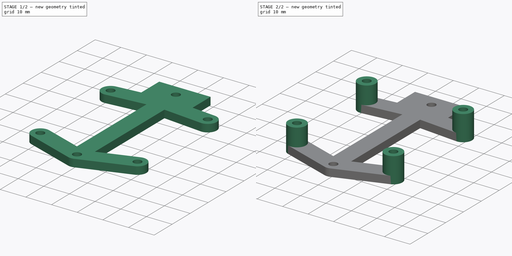
[diagram: build sequence overview — one tinted view per stage of 2, left to right]
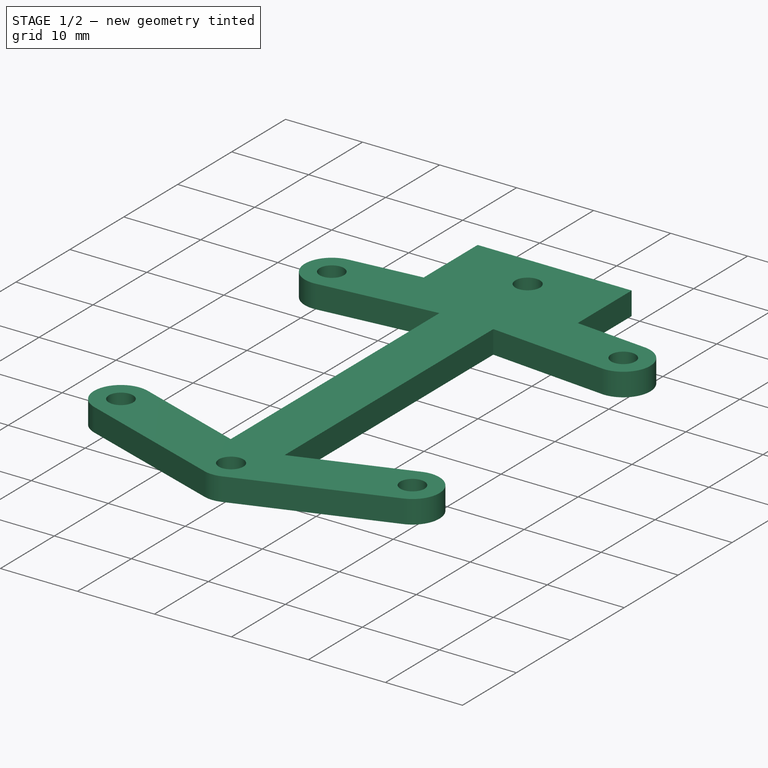
[diagram: stage 1 of 2 — iso view after this stage's code; geometry added in this stage tinted green]
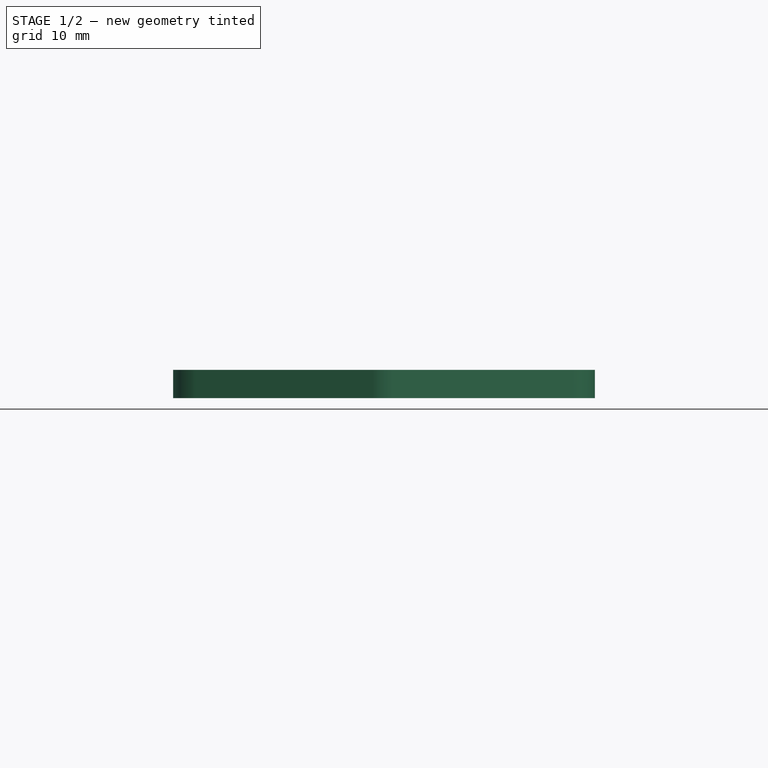
[diagram: stage 1 of 2 — front view after this stage's code; geometry added in this stage tinted green]
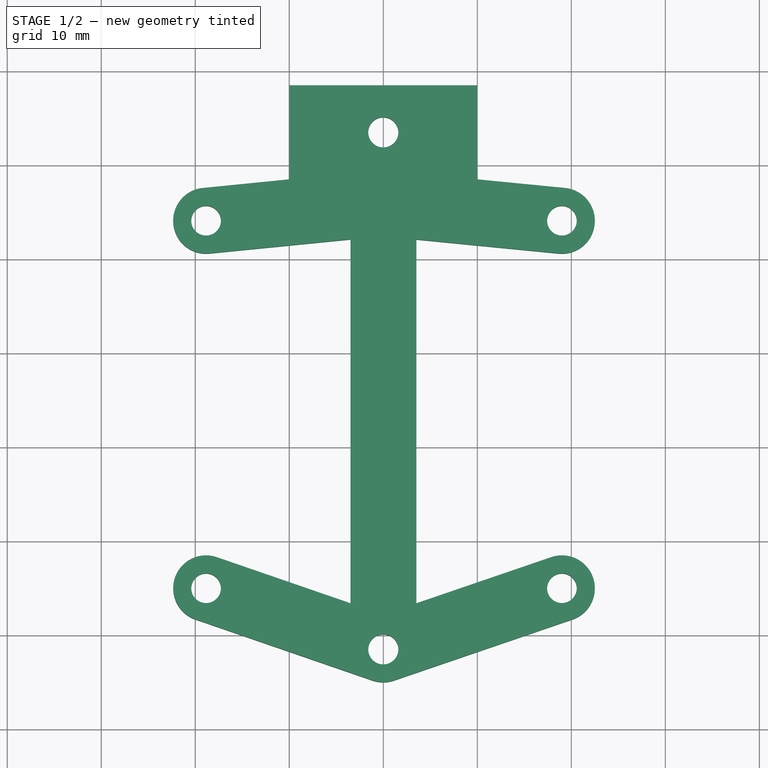
[diagram: stage 1 of 2 — top view after this stage's code; geometry added in this stage tinted green]
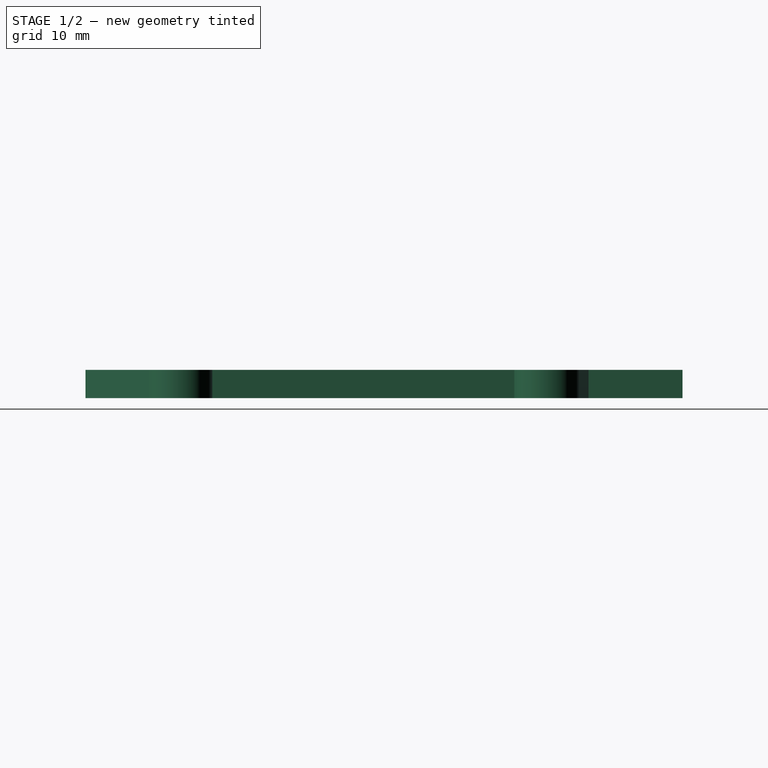
[diagram: stage 1 of 2 — right view after this stage's code; geometry added in this stage tinted green]
FCSTD DOCUMENT  (FreeCAD 0.16R)
Label: escornacpu-3_00-bracket
License: All rights reserved
LicenseURL: http://en.wikipedia.org/wiki/All_rights_reserved
objects: Sketcher::SketchObject×2, PartDesign::Pad×2
note: 6 computed .brp shape members not serialized (recipe doc carries the construction recipe); baked Part::Feature solids carry a one-line shape summary decoded from their .brp

FEATURE [Sketcher::SketchObject] Sketch
  sketch-geometry (35):
    g0: LineSegment [constr] StartX=-27.5 StartY=55 StartZ=0 EndX=27.5 EndY=55 EndZ=0
    g1: LineSegment [constr] StartX=27.5 StartY=55 StartZ=0 EndX=27.5 EndY=-55 EndZ=0
    g2: LineSegment [constr] StartX=27.5 StartY=-55 StartZ=0 EndX=-27.5 EndY=-55 EndZ=0
    g3: LineSegment [constr] StartX=-27.5 StartY=-55 StartZ=0 EndX=-27.5 EndY=55 EndZ=0
    g4: Circle CenterX=-18.85 CenterY=-45 CenterZ=0 NormalX=0 NormalY=0 NormalZ=1 Radius=1.575
    g5: Circle CenterX=19 CenterY=-45 CenterZ=0 NormalX=0 NormalY=0 NormalZ=1 Radius=1.575
    g6: LineSegment [constr] StartX=-18.85 StartY=-5.9 StartZ=0 EndX=-18.85 EndY=-45 EndZ=0
    g7: LineSegment [constr] StartX=-18.85 StartY=-45 StartZ=0 EndX=19 EndY=-45 EndZ=0
    g8: LineSegment StartX=-10 StartY=8.5 StartZ=0 EndX=10 EndY=8.5 EndZ=0
    g9: LineSegment StartX=10 StartY=8.5 StartZ=0 EndX=10 EndY=-1.5 EndZ=0
    g10: LineSegment StartX=3.51838 StartY=-7.89757 StartZ=0 EndX=3.51838 EndY=-46.5972 EndZ=0
    g11: LineSegment StartX=3.51838 StartY=-46.5972 StartZ=0 EndX=17.8671 EndY=-41.6884 EndZ=0
    g12: LineSegment StartX=-10 StartY=8.5 StartZ=0 EndX=-10 EndY=-1.5 EndZ=0
    g13: LineSegment StartX=-3.48162 StartY=-7.88463 StartZ=0 EndX=-3.48162 EndY=-46.5972 EndZ=0
    g14: LineSegment StartX=-3.48162 StartY=-46.5972 StartZ=0 EndX=-17.709 EndY=-41.6912 EndZ=0
    g15: LineSegment StartX=-19.991 StartY=-48.3088 StartZ=0 EndX=-1.14097 EndY=-54.8088 EndZ=0
    g16: LineSegment StartX=1.13291 StartY=-54.8116 StartZ=0 EndX=20.1329 EndY=-48.3116 EndZ=0
    g17: ArcOfCircle CenterX=19 CenterY=-45 CenterZ=0 NormalX=0 NormalY=0 NormalZ=1 Radius=3.5 StartAngle=5.04201 EndAngle=8.18361
    g18: ArcOfCircle CenterX=-18.85 CenterY=-45 CenterZ=0 NormalX=0 NormalY=0 NormalZ=1 Radius=3.5 StartAngle=1.23874 EndAngle=4.38033
    g19: ArcOfCircle CenterX=0 CenterY=-51.5 CenterZ=0 NormalX=0 NormalY=0 NormalZ=1 Radius=3.5 StartAngle=4.38033 EndAngle=5.04201
    g20: LineSegment [constr] StartX=-3.48162 StartY=-46.5972 StartZ=0 EndX=3.51838 EndY=-46.5972 EndZ=0
    g21: LineSegment [constr] StartX=-3.48162 StartY=-46.5972 StartZ=0 EndX=-5.76356 EndY=-53.2148 EndZ=0
    g22: LineSegment [constr] StartX=19 StartY=-45 StartZ=0 EndX=0 EndY=-51.5 EndZ=0
    g23: Circle CenterX=0 CenterY=-51.5 CenterZ=0 NormalX=0 NormalY=0 NormalZ=1 Radius=1.6
    g24: LineSegment [constr] StartX=-10 StartY=3.5 StartZ=0 EndX=10 EndY=3.5 EndZ=0
    g25: Circle CenterX=0 CenterY=3.5 CenterZ=0 NormalX=0 NormalY=0 NormalZ=1 Radius=1.6
    g26: Circle CenterX=-18.85 CenterY=-5.9 CenterZ=0 NormalX=0 NormalY=0 NormalZ=1 Radius=1.575
    g27: Circle CenterX=19 CenterY=-5.9 CenterZ=0 NormalX=0 NormalY=0 NormalZ=1 Radius=1.575
    g28: LineSegment [constr] StartX=19 StartY=-45 StartZ=0 EndX=19 EndY=-5.9 EndZ=0
    g29: LineSegment StartX=-10 StartY=-1.5 StartZ=0 EndX=-19.1973 EndY=-2.41728 EndZ=0
    g30: LineSegment StartX=10 StartY=-1.5 StartZ=0 EndX=19.3418 EndY=-2.41673 EndZ=0
    g31: LineSegment StartX=18.6582 StartY=-9.38327 StartZ=0 EndX=3.51838 EndY=-7.89757 EndZ=0
    g32: LineSegment StartX=-3.48162 StartY=-7.88463 StartZ=0 EndX=-18.5027 EndY=-9.38272 EndZ=0
    g33: ArcOfCircle CenterX=19 CenterY=-5.9 CenterZ=0 NormalX=0 NormalY=0 NormalZ=1 Radius=3.5 StartAngle=4.61457 EndAngle=7.75617
    g34: ArcOfCircle CenterX=-18.85 CenterY=-5.9 CenterZ=0 NormalX=0 NormalY=0 NormalZ=1 Radius=3.5 StartAngle=1.6702 EndAngle=4.81179
  constraints (99):
    c: Coincident(g0,g1)
    c: Coincident(g1,g2)
    c: Coincident(g2,g3)
    c: Coincident(g3,g0)
    c: Horizontal(g0)
    c: Horizontal(g2)
    c: Vertical(g1)
    c: Vertical(g3)
    c: DistanceX(g0,g0) = 55
    c: DistanceY(g3,g3) = 110
    c: Symmetric(g1,g0,g-1)
    c: Symmetric(g0,g0,g-2)
    c: Equal(g5,g4)
    c: Coincident(g4,g7)
    c: Coincident(g4,g6)
    c: Coincident(g5,g7)
    c: Vertical(g6)
    c: Horizontal(g7)
    c: DistanceY(g2,g4) = 10
    c: DistanceX(g2,g5) = 46.5
    c: Coincident(g8,g9)
    c: Coincident(g10,g11)
    c: Coincident(g13,g14)
    c: Horizontal(g8)
    c: Vertical(g13)
    c: Vertical(g10)
    c: Parallel(g16,g11)
    c: Parallel(g14,g15)
    c: Vertical(g12)
    c: Vertical(g9)
    c: Coincident(g5,g17)
    c: Coincident(g18,g4)
    c: Coincident(g14,g18)
    c: Coincident(g18,g15)
    c: Coincident(g16,g17)
    c: Coincident(g11,g17)
    c: Coincident(g19,g15)
    c: Coincident(g19,g16)
    c: Equal(g17,g18)
    c: Radius(g18) = 3.5
    c: PointOnObject(g19,g-2)
    c: Tangent(g2,g19)
    c: Tangent(g16,g19)
    c: Tangent(g15,g19)
    c: Tangent(g16,g17)
    c: Tangent(g17,g11)
    c: Tangent(g15,g18)
    c: Tangent(g14,g18)
    c: Horizontal(g20)
    c: Coincident(g13,g20)
    c: Coincident(g10,g20)
    c: Coincident(g21,g13)
    c: Perpendicular(g21,g14)
    c: PointOnObject(g21,g15)
    c: Equal(g20,g21)
    c: Coincident(g5,g22)
    c: Coincident(g23,g22)
    c: PointOnObject(g22,g-2)
    c: Parallel(g22,g16)
    c: Equal(g12,g9)
    c: DistanceY(g9,g9) = 10
    c: Symmetric(g9,g9,g24)
    c: Symmetric(g12,g12,g24)
    c: Symmetric(g24,g24,g-2)
    c: DistanceX(g24,g24) = 20
    c: Equal(g23,g25)
    c: Symmetric(g24,g24,g25)
    c: DistanceY(g22,g25) = 55
    c: Equal(g19,g17)
    c: Radius(g25) = 1.6
    c: DistanceY(g2,g6) = 49.1
    c: Coincident(g8,g12)
    c: DistanceX(g2,g4) = 8.65
    c: Equal(g26,g27)
    c: Equal(g27,g5)
    c: Radius(g27) = 1.575
    c: Coincident(g26,g6)
    c: Coincident(g27,g28)
    c: Coincident(g5,g28)
    c: Vertical(g28)
    c: Equal(g6,g28)
    c: Coincident(g13,g32)
    c: Coincident(g10,g31)
    c: Coincident(g9,g30)
    c: Coincident(g12,g29)
    c: Coincident(g34,g29)
    c: Coincident(g34,g32)
    c: Coincident(g31,g33)
    c: Coincident(g33,g30)
    c: Coincident(g34,g6)
    c: Coincident(g27,g33)
    c: Equal(g18,g34)
    c: Equal(g34,g33)
    c: Tangent(g29,g34)
    c: Tangent(g33,g30)
    c: Tangent(g33,g31)
    c: Tangent(g34,g32)
    c: Parallel(g29,g32)
    c: Parallel(g30,g31)
FEATURE [PartDesign::Pad] Pad
  Length = 3
  Length2 = 100
  Sketch = -> Sketch
  Type = 0
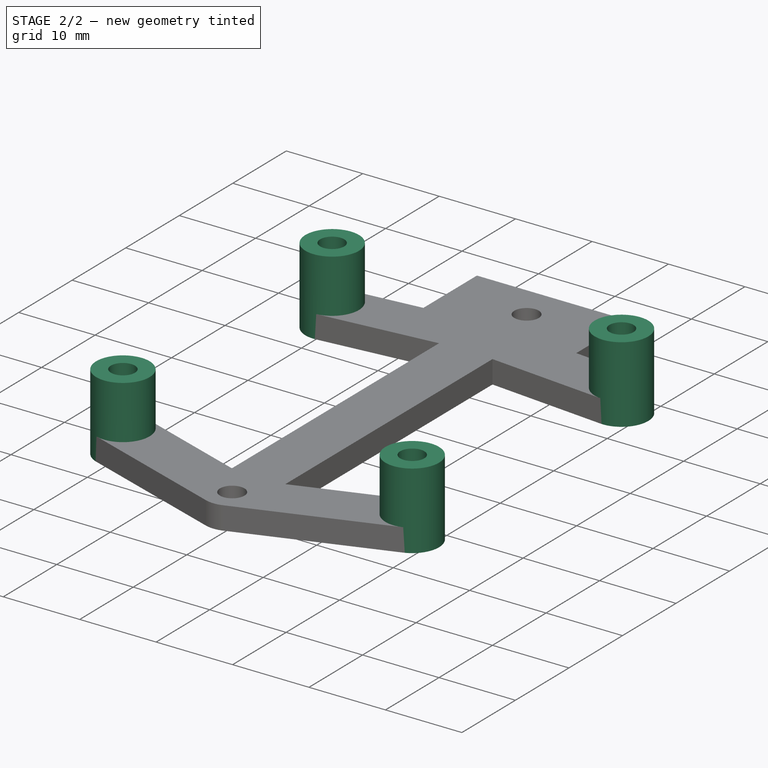
[diagram: stage 2 of 2 — iso view after this stage's code; geometry added in this stage tinted green]
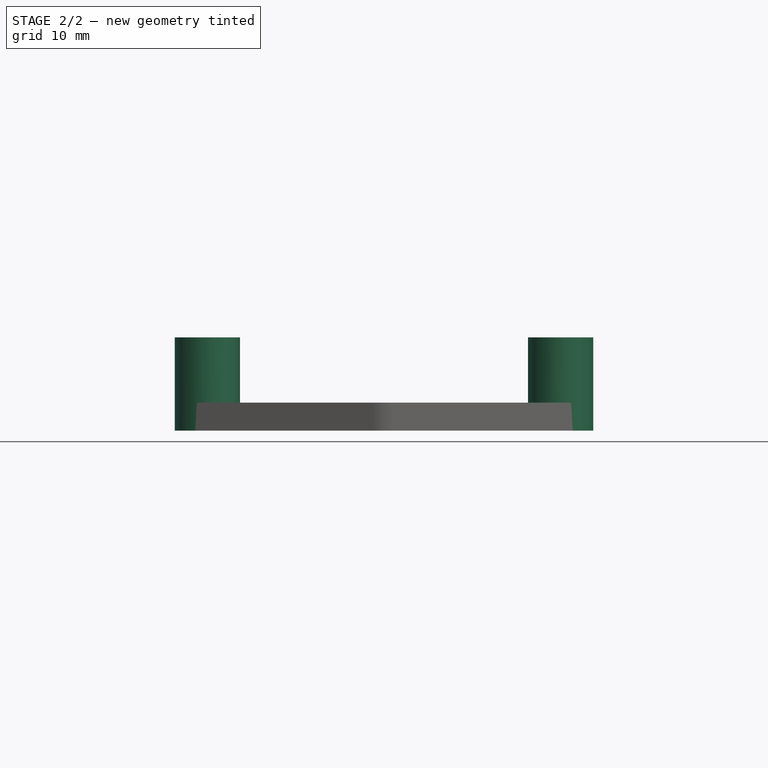
[diagram: stage 2 of 2 — front view after this stage's code; geometry added in this stage tinted green]
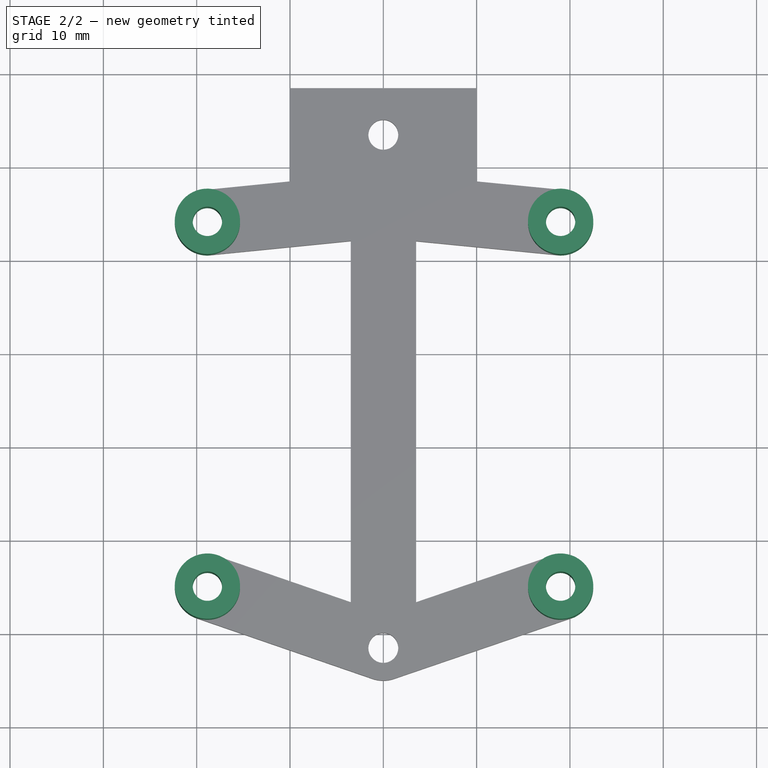
[diagram: stage 2 of 2 — top view after this stage's code; geometry added in this stage tinted green]
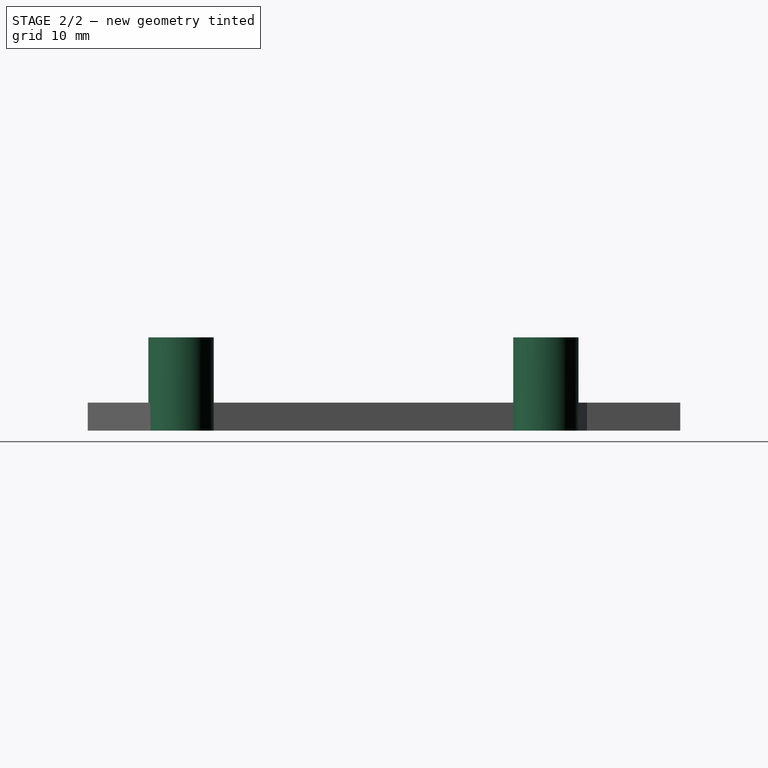
[diagram: stage 2 of 2 — right view after this stage's code; geometry added in this stage tinted green]
FEATURE [Sketcher::SketchObject] Sketch001
  ExternalGeometry = -> [Pad]
  Placement = pos=(0,0,3) rot=(0,0,1;0rad)
  Support = -> Pad [Face26]
  sketch-geometry (8):
    g0: Circle CenterX=-18.85 CenterY=-5.9 CenterZ=0 NormalX=0 NormalY=0 NormalZ=1 Radius=3.5
    g1: Circle CenterX=-18.85 CenterY=-5.9 CenterZ=0 NormalX=0 NormalY=0 NormalZ=1 Radius=1.575
    g2: Circle CenterX=19 CenterY=-5.9 CenterZ=0 NormalX=0 NormalY=0 NormalZ=1 Radius=1.575
    g3: Circle CenterX=19 CenterY=-5.9 CenterZ=0 NormalX=0 NormalY=0 NormalZ=1 Radius=3.5
    g4: Circle CenterX=19 CenterY=-45 CenterZ=0 NormalX=0 NormalY=0 NormalZ=1 Radius=3.5
    g5: Circle CenterX=19 CenterY=-45 CenterZ=0 NormalX=0 NormalY=0 NormalZ=1 Radius=1.575
    g6: Circle CenterX=-18.85 CenterY=-45 CenterZ=0 NormalX=0 NormalY=0 NormalZ=1 Radius=3.5
    g7: Circle CenterX=-18.85 CenterY=-45 CenterZ=0 NormalX=0 NormalY=0 NormalZ=1 Radius=1.575
  constraints (16):
    c: Coincident(g-7,g6)
    c: Coincident(g-7,g7)
    c: Coincident(g5,g4)
    c: Coincident(g5,g-10)
    c: Coincident(g2,g3)
    c: Coincident(g2,g-9)
    c: Coincident(g1,g0)
    c: Coincident(g1,g-8)
    c: Equal(g-3,g1)
    c: Equal(g-8,g0)
    c: Equal(g-4,g2)
    c: Equal(g-9,g3)
    c: Equal(g-5,g5)
    c: Equal(g-10,g4)
    c: Equal(g-6,g7)
    c: Equal(g6,g-7)
FEATURE [PartDesign::Pad] Pad001
  Length = 7
  Length2 = 100
  Sketch = -> Sketch001
  Type = 0
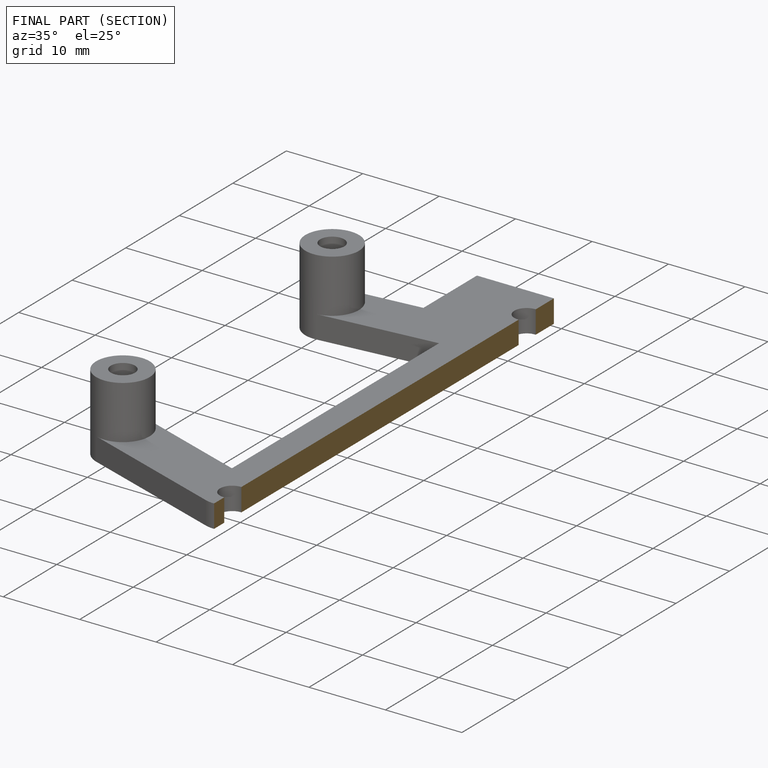
[diagram: finished part — half-section view (interior)]
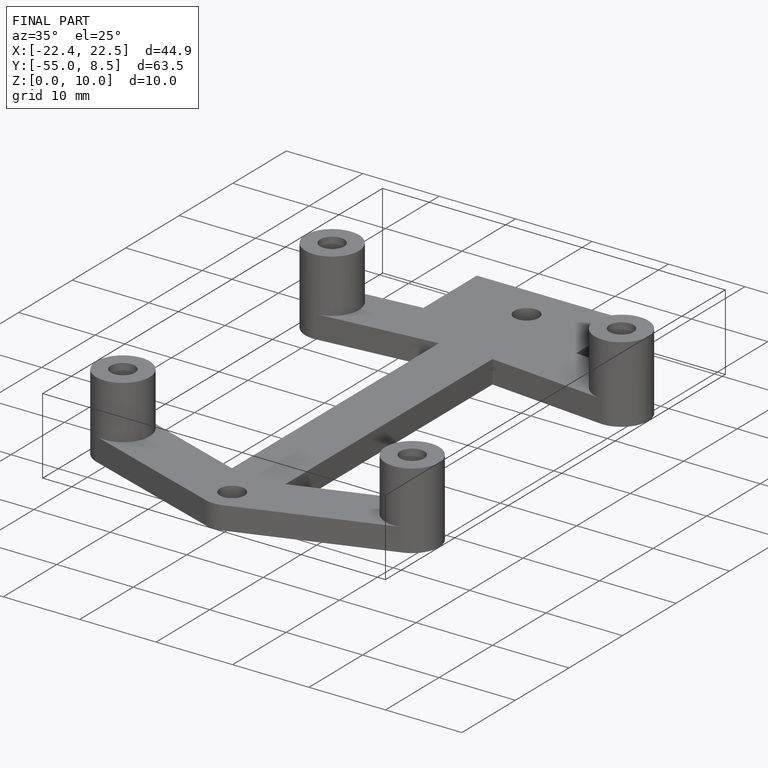
[diagram: finished part — iso view with bounding-box wireframe]
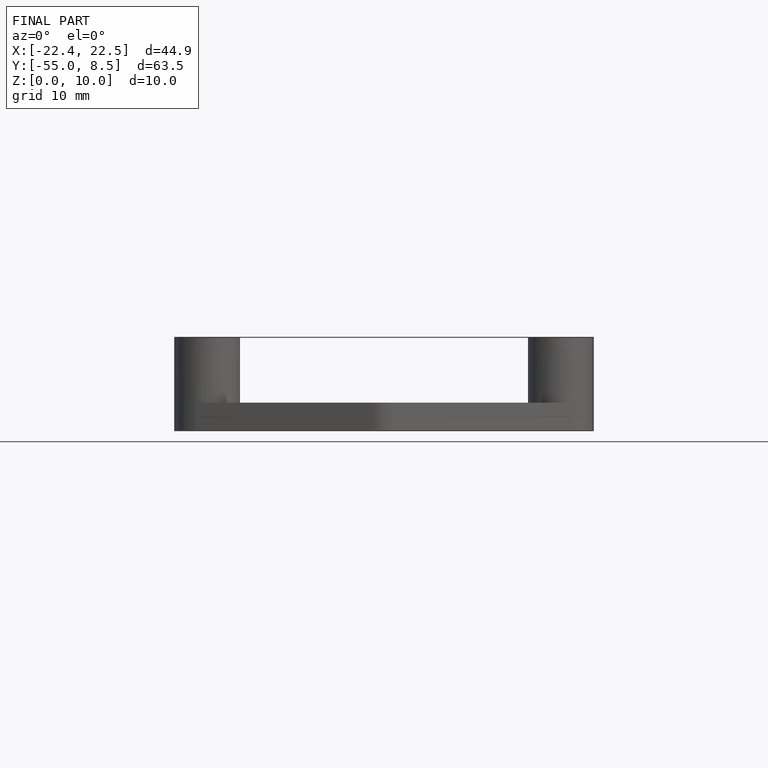
[diagram: finished part — front view with bounding-box wireframe]
